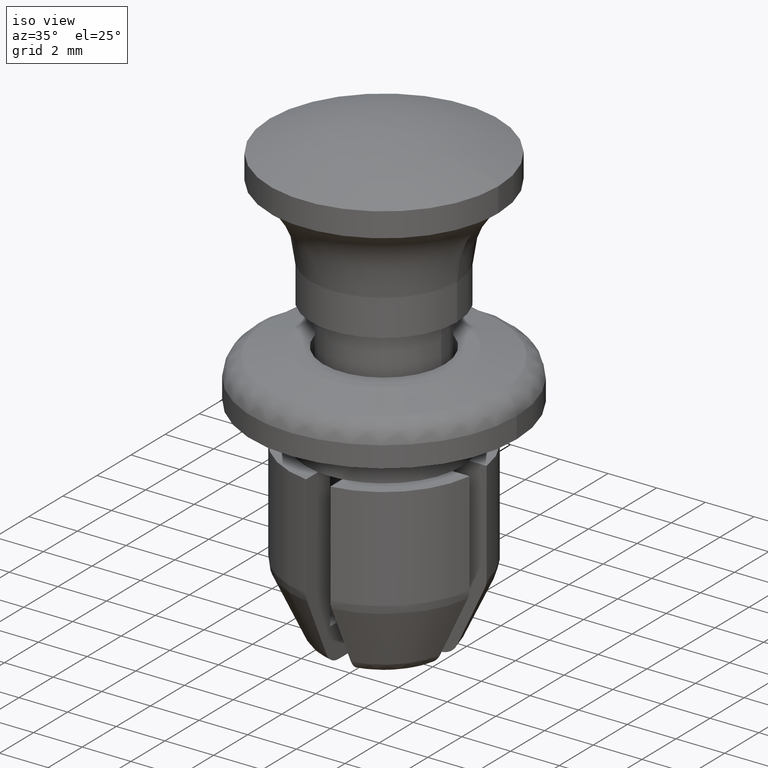
[diagram: clean part render]
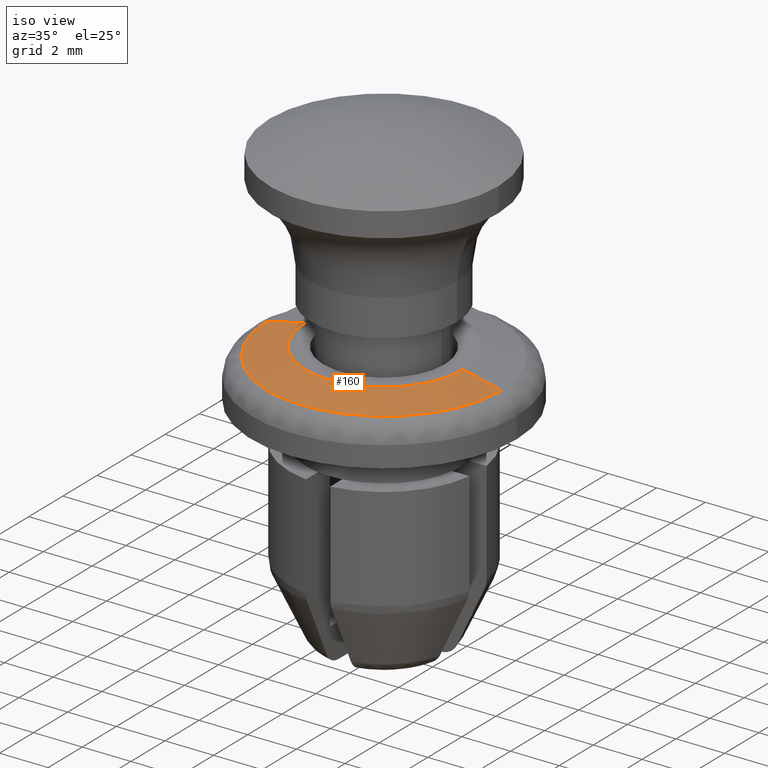
[diagram: same view with one face highlighted and labeled with its STEP entity id]
A machine part, iso view. The second image highlights one B-rep face of the part: STEP entity #160.
In plain terms, the highlighted face is a freeform B-spline surface patch.
Its self-contained STEP definition (entity closure, byte-faithful):
#160=ADVANCED_FACE('',(#675),#674,.T.);
#674=( BOUNDED_SURFACE() B_SPLINE_SURFACE( 2,1,((#1311,#1312),(#1313,#1314),(#1315,#1316),(#1317,#1318),(#1319,#1320)), .UNSPECIFIED.,.F.,.F.,.F.) B_SPLINE_SURFACE_WITH_KNOTS((3,2,3),(2,2),(0.00000000000E+00,5.00000000000E-01,1.00000000000E+00),(0.00000000000E+00,1.00000000000E+00), .UNSPECIFIED. ) GEOMETRIC_REPRESENTATION_ITEM() RATIONAL_B_SPLINE_SURFACE(((1.00000000000E+00,1.00000000000E+00),(7.07106781187E-01,7.07106781187E-01),(1.00000000000E+00,1.00000000000E+00),(7.07106781187E-01,7.07106781187E-01),(1.00000000000E+00,1.00000000000E+00))) REPRESENTATION_ITEM('') SURFACE() );
#675=FACE_OUTER_BOUND('',#1321,.T.);
#1311=CARTESIAN_POINT('',(0.00000000000E+00,0.00000000000E+00,7.39713434350E-01));
#1312=CARTESIAN_POINT('',(6.80944396822E+00,-1.66783275193E-15,-8.10144160648E-01));
#1313=CARTESIAN_POINT('',(0.00000000000E+00,0.00000000000E+00,7.39713434350E-01));
#1314=CARTESIAN_POINT('',(6.80944396822E+00,-6.80944396822E+00,-8.10144160648E-01));
#1315=CARTESIAN_POINT('',(0.00000000000E+00,0.00000000000E+00,7.39713434350E-01));
#1316=CARTESIAN_POINT('',(-1.25087456395E-15,-6.80944396822E+00,-8.10144160648E-01));
#1317=CARTESIAN_POINT('',(0.00000000000E+00,0.00000000000E+00,7.39713434350E-01));
#1318=CARTESIAN_POINT('',(-6.80944396822E+00,-6.80944396822E+00,-8.10144160648E-01));
#1319=CARTESIAN_POINT('',(0.00000000000E+00,0.00000000000E+00,7.39713434350E-01));
#1320=CARTESIAN_POINT('',(-6.80944396822E+00,8.33916375965E-16,-8.10144160648E-01));
#1321=EDGE_LOOP('',(#1858,#1859,#1860,#1861));
#1858=ORIENTED_EDGE('',*,*,#2136,.F.);
#1859=ORIENTED_EDGE('',*,*,#2137,.F.);
#1860=ORIENTED_EDGE('',*,*,#2077,.T.);
#1861=ORIENTED_EDGE('',*,*,#2138,.T.);
#2077=EDGE_CURVE('',#2733,#2734,#2735,.T.);
#2136=EDGE_CURVE('',#3114,#3115,#3116,.T.);
#2137=EDGE_CURVE('',#2733,#3114,#3122,.T.);
#2138=EDGE_CURVE('',#2734,#3115,#3128,.T.);
#2733=VERTEX_POINT('',#3857);
#2734=VERTEX_POINT('',#3858);
#2735=CIRCLE('',#3862,3.25000000000E+00);
#3114=VERTEX_POINT('',#4109);
#3115=VERTEX_POINT('',#4110);
#3116=CIRCLE('',#4114,4.81500400604E+00);
#3122=(BOUNDED_CURVE() B_SPLINE_CURVE(1,(#4115,#4116),.UNSPECIFIED.,.F.,.F.) B_SPLINE_CURVE_WITH_KNOTS((2,2),(4.77278326948E-01,7.07106779954E-01),.UNSPECIFIED.) CURVE() GEOMETRIC_REPRESENTATION_ITEM() RATIONAL_B_SPLINE_CURVE((1.00000000000E+00,1.00000000000E+00)) REPRESENTATION_ITEM('') );
#3128=(BOUNDED_CURVE() B_SPLINE_CURVE(1,(#4117,#4118),.UNSPECIFIED.,.F.,.F.) B_SPLINE_CURVE_WITH_KNOTS((2,2),(4.77278297174E-01,7.07106742427E-01),.UNSPECIFIED.) CURVE() GEOMETRIC_REPRESENTATION_ITEM() RATIONAL_B_SPLINE_CURVE((7.50000000000E-01,7.50000000000E-01)) REPRESENTATION_ITEM('') );
#3857=CARTESIAN_POINT('',(3.25000000000E+00,1.48029736617E-16,0.00000000000E+00));
#3858=CARTESIAN_POINT('',(-3.25000000000E+00,0.00000000000E+00,0.00000000000E+00));
#3859=CARTESIAN_POINT('',(0.00000000000E+00,0.00000000000E+00,0.00000000000E+00));
#3860=DIRECTION('',(-0.00000000000E+00,0.00000000000E+00,-1.00000000000E+00));
#3861=DIRECTION('',(-1.00000000000E+00,-1.22460635382E-16,0.00000000000E+00));
#3862=AXIS2_PLACEMENT_3D('',#3859,#3860,#3861);
#4109=CARTESIAN_POINT('',(4.81500400604E+00,0.00000000000E+00,-3.56201380946E-01));
#4110=CARTESIAN_POINT('',(-4.81500400604E+00,0.00000000000E+00,-3.56201380946E-01));
#4111=CARTESIAN_POINT('',(0.00000000000E+00,0.00000000000E+00,-3.56201380946E-01));
#4112=DIRECTION('',(-0.00000000000E+00,0.00000000000E+00,-1.00000000000E+00));
#4113=DIRECTION('',(-1.00000000000E+00,-1.22460635382E-16,0.00000000000E+00));
#4114=AXIS2_PLACEMENT_3D('',#4111,#4112,#4113);
#4115=CARTESIAN_POINT('',(3.25000002459E+00,-7.95994136008E-16,-5.59787693977E-09));
#4116=CARTESIAN_POINT('',(4.81500399764E+00,-1.17929689784E-15,-3.56201379037E-01));
#4117=CARTESIAN_POINT('',(-3.24999982186E+00,8.47816567483E-16,4.05464530839E-08));
#4118=CARTESIAN_POINT('',(-4.81500374211E+00,1.25607389810E-15,-3.56201320875E-01));